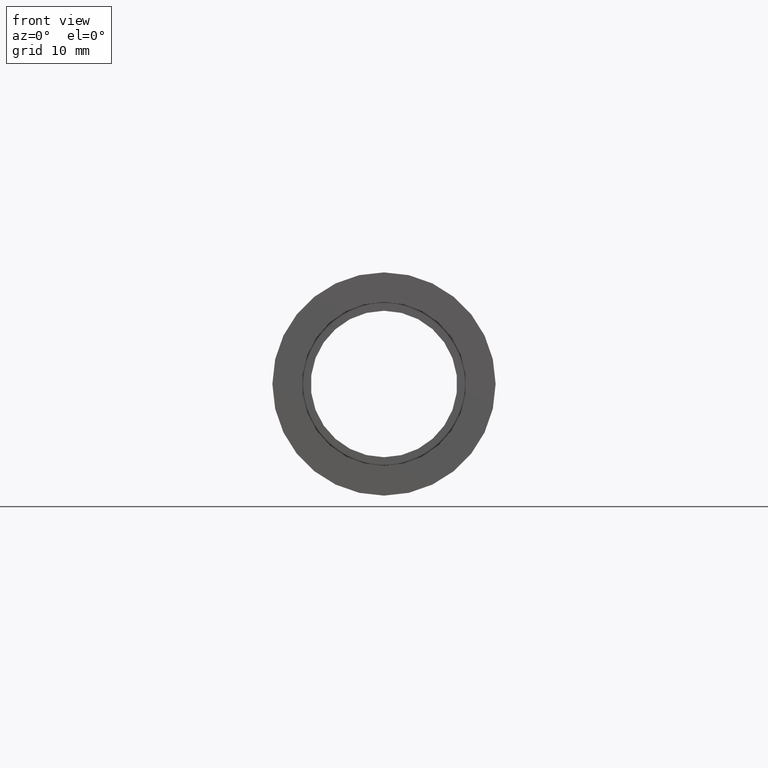
[diagram: clean part render]
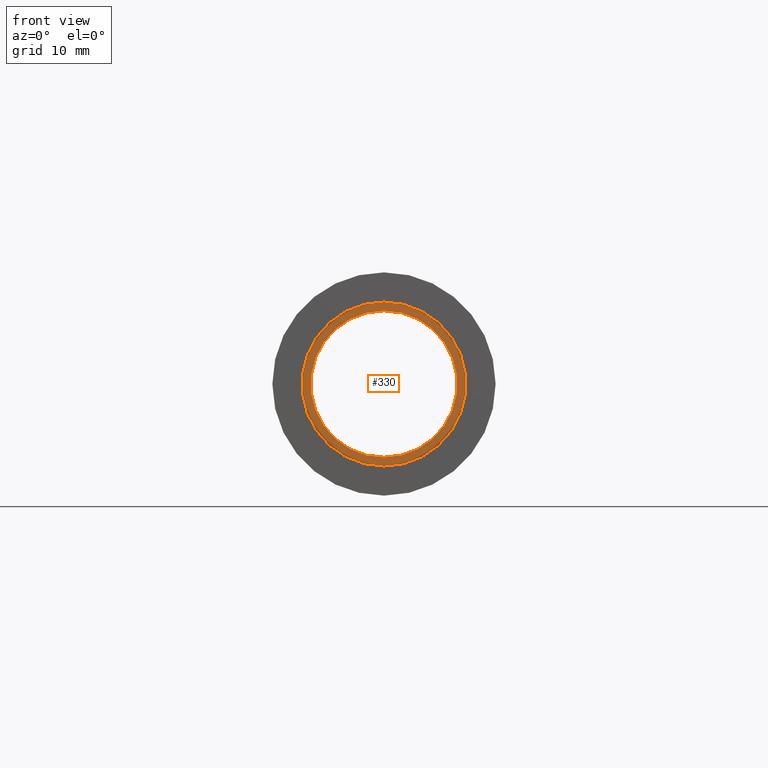
[diagram: same view with one face highlighted and labeled with its STEP entity id]
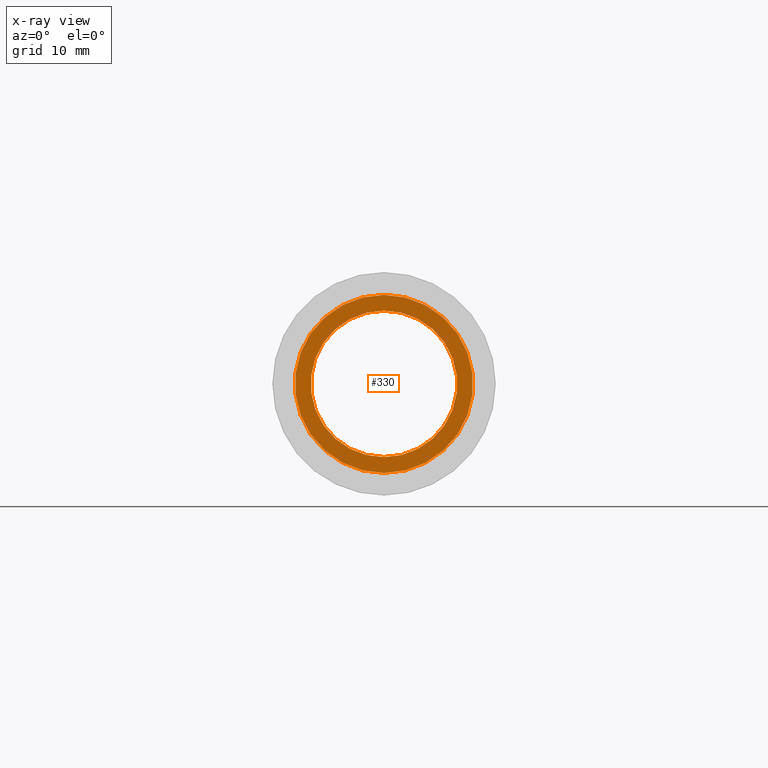
[diagram: x-ray of the same camera — body ghosted, the highlighted face saturated]
A machine part, front view. The second image highlights one B-rep face of the part: STEP entity #330.
The next image is the same camera in x-ray: the body ghosted, the highlighted face saturated — about 0% of this face is hidden behind the body in this view.
In plain terms, the highlighted planar face has unit normal (-0, 1, 0).
Its self-contained STEP definition (entity closure, byte-faithful):
#4 = VERTEX_POINT ( 'NONE', #77 ) ;
#42 = VERTEX_POINT ( 'NONE', #550 ) ;
#44 = EDGE_CURVE ( 'NONE', #62, #4, #278, .T. ) ;
#62 = VERTEX_POINT ( 'NONE', #596 ) ;
#66 = AXIS2_PLACEMENT_3D ( 'NONE', #158, #344, #159 ) ;
#77 = CARTESIAN_POINT ( 'NONE',  ( 7.654042494670981300E-016, 5.499999999999976900, -6.250000000000019500 ) ) ;
#89 = DIRECTION ( 'NONE',  ( -0.0000000000000000000, 1.000000000000000000, -0.0000000000000000000 ) ) ;
#158 = CARTESIAN_POINT ( 'NONE',  ( 0.0000000000000000000, 5.499999999999976900, 0.0000000000000000000 ) ) ;
#159 = DIRECTION ( 'NONE',  ( 0.0000000000000000000, 0.0000000000000000000, 1.000000000000000000 ) ) ;
#171 = DIRECTION ( 'NONE',  ( -0.0000000000000000000, 1.000000000000000000, -0.0000000000000000000 ) ) ;
#196 = DIRECTION ( 'NONE',  ( 0.0000000000000000000, 0.0000000000000000000, 1.000000000000000000 ) ) ;
#216 = CIRCLE ( 'NONE', #66, 7.600000000000019200 ) ;
#239 = VERTEX_POINT ( 'NONE', #413 ) ;
#274 = EDGE_CURVE ( 'NONE', #42, #239, #345, .T. ) ;
#278 = CIRCLE ( 'NONE', #468, 6.250000000000019500 ) ;
#294 = DIRECTION ( 'NONE',  ( 0.0000000000000000000, 0.0000000000000000000, 1.000000000000000000 ) ) ;
#309 = DIRECTION ( 'NONE',  ( 0.0000000000000000000, 0.0000000000000000000, 1.000000000000000000 ) ) ;
#330 = ADVANCED_FACE ( 'NONE', ( #539, #573 ), #340, .F. ) ;
#340 = PLANE ( 'NONE',  #445 ) ;
#344 = DIRECTION ( 'NONE',  ( -0.0000000000000000000, 1.000000000000000000, -0.0000000000000000000 ) ) ;
#345 = CIRCLE ( 'NONE', #542, 7.600000000000019200 ) ;
#350 = EDGE_LOOP ( 'NONE', ( #570, #516 ) ) ;
#367 = CIRCLE ( 'NONE', #392, 6.250000000000019500 ) ;
#368 = CARTESIAN_POINT ( 'NONE',  ( 0.0000000000000000000, 5.499999999999976900, 0.0000000000000000000 ) ) ;
#380 = EDGE_CURVE ( 'NONE', #239, #42, #216, .T. ) ;
#383 = CARTESIAN_POINT ( 'NONE',  ( 6.250000000000019500, 5.499999999999983100, 0.0000000000000000000 ) ) ;
#392 = AXIS2_PLACEMENT_3D ( 'NONE', #540, #585, #294 ) ;
#413 = CARTESIAN_POINT ( 'NONE',  ( 0.0000000000000000000, 5.499999999999976900, 7.600000000000019200 ) ) ;
#415 = DIRECTION ( 'NONE',  ( 0.0000000000000000000, 0.0000000000000000000, 1.000000000000000000 ) ) ;
#445 = AXIS2_PLACEMENT_3D ( 'NONE', #383, #476, #196 ) ;
#446 = EDGE_CURVE ( 'NONE', #4, #62, #367, .T. ) ;
#468 = AXIS2_PLACEMENT_3D ( 'NONE', #561, #171, #309 ) ;
#476 = DIRECTION ( 'NONE',  ( -0.0000000000000000000, 1.000000000000000000, 0.0000000000000000000 ) ) ;
#499 = ORIENTED_EDGE ( 'NONE', *, *, #446, .T. ) ;
#516 = ORIENTED_EDGE ( 'NONE', *, *, #274, .F. ) ;
#517 = ORIENTED_EDGE ( 'NONE', *, *, #44, .T. ) ;
#534 = EDGE_LOOP ( 'NONE', ( #517, #499 ) ) ;
#539 = FACE_OUTER_BOUND ( 'NONE', #350, .T. ) ;
#540 = CARTESIAN_POINT ( 'NONE',  ( 0.0000000000000000000, 5.499999999999976900, 0.0000000000000000000 ) ) ;
#542 = AXIS2_PLACEMENT_3D ( 'NONE', #368, #89, #415 ) ;
#550 = CARTESIAN_POINT ( 'NONE',  ( 9.307315673519907200E-016, 5.499999999999976900, -7.600000000000019200 ) ) ;
#561 = CARTESIAN_POINT ( 'NONE',  ( 0.0000000000000000000, 5.499999999999976900, 0.0000000000000000000 ) ) ;
#570 = ORIENTED_EDGE ( 'NONE', *, *, #380, .F. ) ;
#573 = FACE_BOUND ( 'NONE', #534, .T. ) ;
#585 = DIRECTION ( 'NONE',  ( -0.0000000000000000000, 1.000000000000000000, -0.0000000000000000000 ) ) ;
#596 = CARTESIAN_POINT ( 'NONE',  ( 0.0000000000000000000, 5.499999999999976900, 6.250000000000019500 ) ) ;